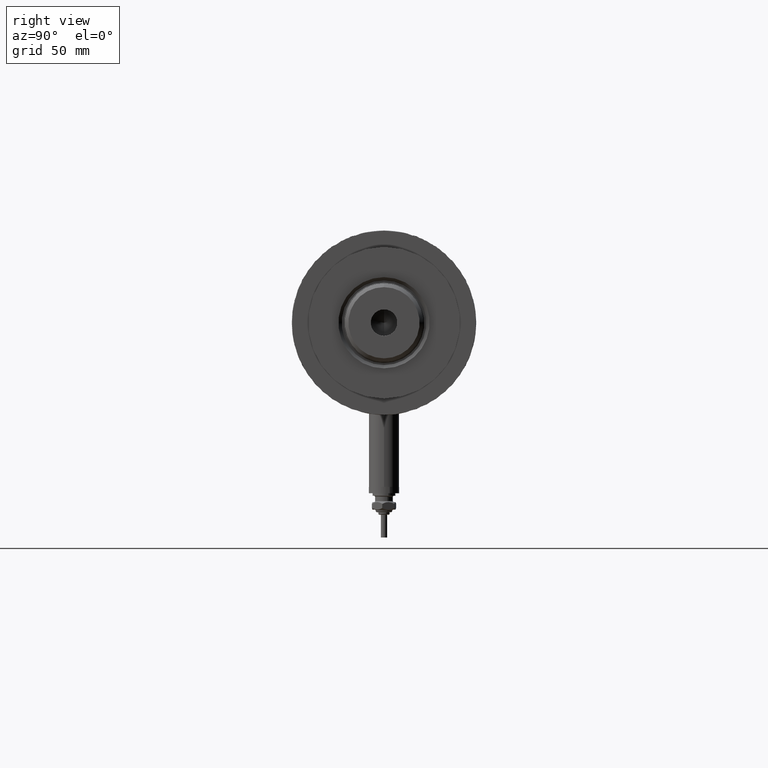
[diagram: clean part render]
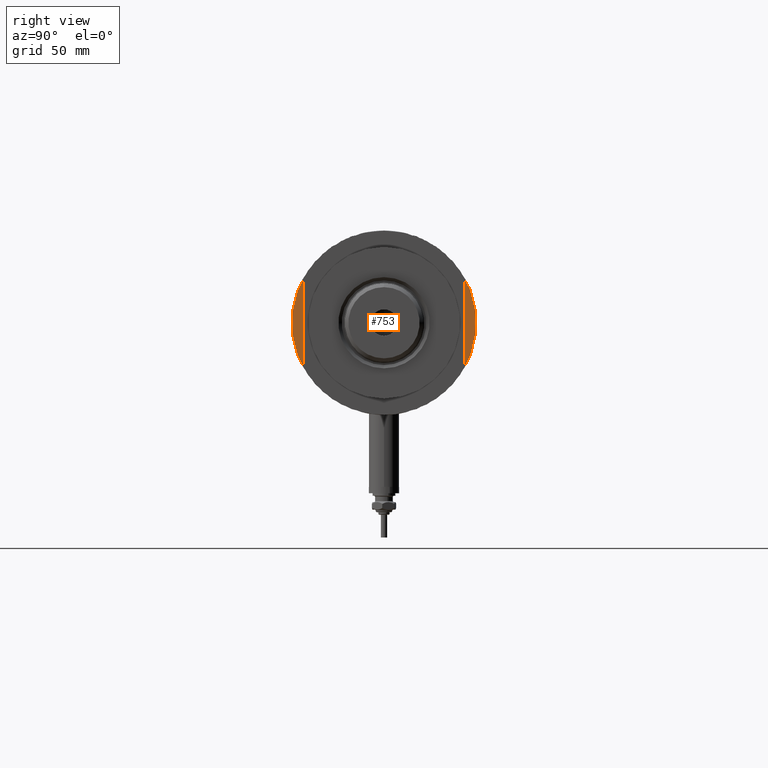
[diagram: same view with one face highlighted and labeled with its STEP entity id]
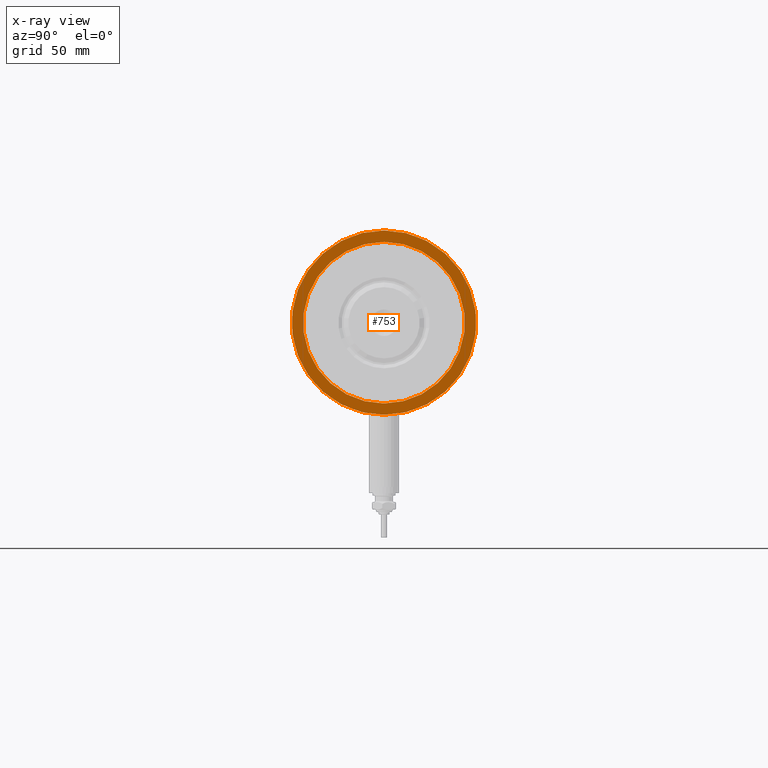
[diagram: x-ray of the same camera — body ghosted, the highlighted face saturated]
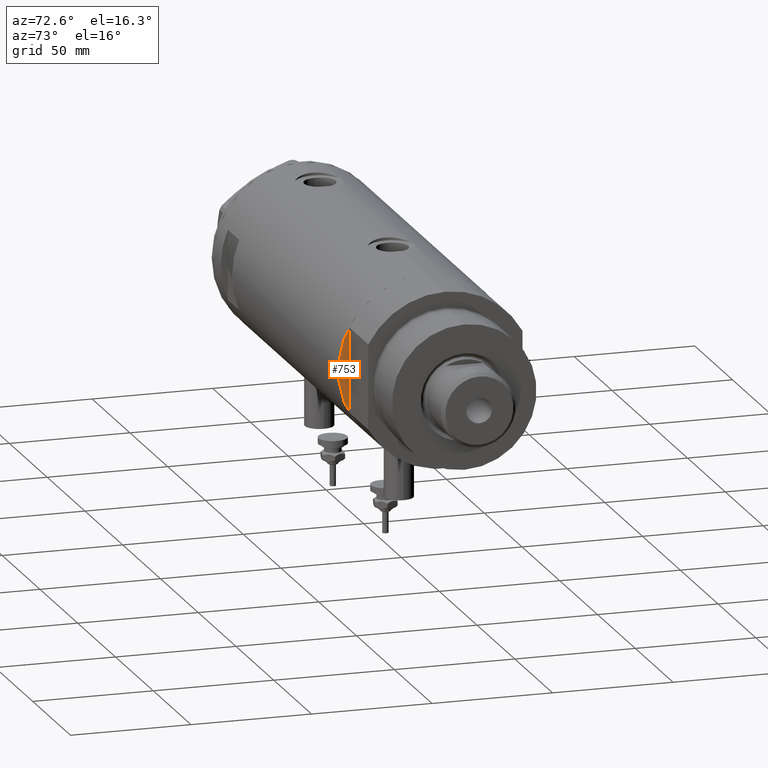
[diagram: same view with one face highlighted and labeled with its STEP entity id]
A machine part, right view. The second image highlights one B-rep face of the part: STEP entity #753.
The next image is the same camera in x-ray: the body ghosted, the highlighted face saturated — about 0% of this face is hidden behind the body in this view.
A second angle (auxiliary view) of the same face is appended — the face is thin or edge-on in the first view.
In plain terms, the highlighted planar face has unit normal (-1, -0, 0).
Its self-contained STEP definition (entity closure, byte-faithful):
#209 = CARTESIAN_POINT ( 'NONE',  ( 0.000000000000000000, 0.000000000000000000, -82.90000000000000568 ) ) ;
#364 = EDGE_CURVE ( 'NONE', #1684, #2465, #2151, .T. ) ;
#394 = DIRECTION ( 'NONE',  ( 0.000000000000000000, 0.000000000000000000, 1.000000000000000000 ) ) ;
#460 = ORIENTED_EDGE ( 'NONE', *, *, #791, .F. ) ;
#561 = AXIS2_PLACEMENT_3D ( 'NONE', #5067, #5610, #2283 ) ;
#753 = ADVANCED_FACE ( 'NONE', ( #3379, #5657 ), #1083, .F. ) ;
#791 = EDGE_CURVE ( 'NONE', #2465, #1684, #2356, .T. ) ;
#843 = ORIENTED_EDGE ( 'NONE', *, *, #3331, .F. ) ;
#1039 = DIRECTION ( 'NONE',  ( -1.000000000000000000, 0.000000000000000000, 0.000000000000000000 ) ) ;
#1083 = PLANE ( 'NONE',  #3903 ) ;
#1395 = AXIS2_PLACEMENT_3D ( 'NONE', #5697, #4784, #1039 ) ;
#1415 = EDGE_CURVE ( 'NONE', #5350, #3487, #2550, .T. ) ;
#1684 = VERTEX_POINT ( 'NONE', #4333 ) ;
#2045 = DIRECTION ( 'NONE',  ( 1.000000000000000000, 0.000000000000000000, -0.000000000000000000 ) ) ;
#2151 = CIRCLE ( 'NONE', #2629, 32.00000000000000000 ) ;
#2173 = AXIS2_PLACEMENT_3D ( 'NONE', #5901, #394, #4482 ) ;
#2283 = DIRECTION ( 'NONE',  ( 1.000000000000000000, 0.000000000000000000, 0.000000000000000000 ) ) ;
#2285 = ORIENTED_EDGE ( 'NONE', *, *, #1415, .F. ) ;
#2356 = CIRCLE ( 'NONE', #1395, 32.00000000000000000 ) ;
#2465 = VERTEX_POINT ( 'NONE', #4440 ) ;
#2550 = CIRCLE ( 'NONE', #561, 36.50000000000000000 ) ;
#2629 = AXIS2_PLACEMENT_3D ( 'NONE', #5479, #2725, #3321 ) ;
#2685 = EDGE_LOOP ( 'NONE', ( #460, #5871 ) ) ;
#2725 = DIRECTION ( 'NONE',  ( 0.000000000000000000, 0.000000000000000000, -1.000000000000000000 ) ) ;
#3060 = EDGE_LOOP ( 'NONE', ( #843, #2285 ) ) ;
#3129 = CARTESIAN_POINT ( 'NONE',  ( -36.50000000000000000, 4.469960816887838430E-15, -82.90000000000000568 ) ) ;
#3321 = DIRECTION ( 'NONE',  ( -1.000000000000000000, 0.000000000000000000, 0.000000000000000000 ) ) ;
#3331 = EDGE_CURVE ( 'NONE', #3487, #5350, #5750, .T. ) ;
#3379 = FACE_BOUND ( 'NONE', #2685, .T. ) ;
#3487 = VERTEX_POINT ( 'NONE', #5085 ) ;
#3868 = DIRECTION ( 'NONE',  ( 0.000000000000000000, 0.000000000000000000, 1.000000000000000000 ) ) ;
#3903 = AXIS2_PLACEMENT_3D ( 'NONE', #209, #3868, #2045 ) ;
#4333 = CARTESIAN_POINT ( 'NONE',  ( 32.00000000000000000, 3.918869757271530263E-15, -82.90000000000000568 ) ) ;
#4440 = CARTESIAN_POINT ( 'NONE',  ( -32.00000000000000000, 0.000000000000000000, -82.90000000000000568 ) ) ;
#4482 = DIRECTION ( 'NONE',  ( 1.000000000000000000, 0.000000000000000000, 0.000000000000000000 ) ) ;
#4784 = DIRECTION ( 'NONE',  ( 0.000000000000000000, 0.000000000000000000, -1.000000000000000000 ) ) ;
#5067 = CARTESIAN_POINT ( 'NONE',  ( 0.000000000000000000, 0.000000000000000000, -82.90000000000000568 ) ) ;
#5085 = CARTESIAN_POINT ( 'NONE',  ( 36.50000000000000000, 0.000000000000000000, -82.90000000000000568 ) ) ;
#5350 = VERTEX_POINT ( 'NONE', #3129 ) ;
#5479 = CARTESIAN_POINT ( 'NONE',  ( 0.000000000000000000, 0.000000000000000000, -82.90000000000000568 ) ) ;
#5610 = DIRECTION ( 'NONE',  ( 0.000000000000000000, 0.000000000000000000, 1.000000000000000000 ) ) ;
#5657 = FACE_OUTER_BOUND ( 'NONE', #3060, .T. ) ;
#5697 = CARTESIAN_POINT ( 'NONE',  ( 0.000000000000000000, 0.000000000000000000, -82.90000000000000568 ) ) ;
#5750 = CIRCLE ( 'NONE', #2173, 36.50000000000000000 ) ;
#5871 = ORIENTED_EDGE ( 'NONE', *, *, #364, .F. ) ;
#5901 = CARTESIAN_POINT ( 'NONE',  ( 0.000000000000000000, 0.000000000000000000, -82.90000000000000568 ) ) ;